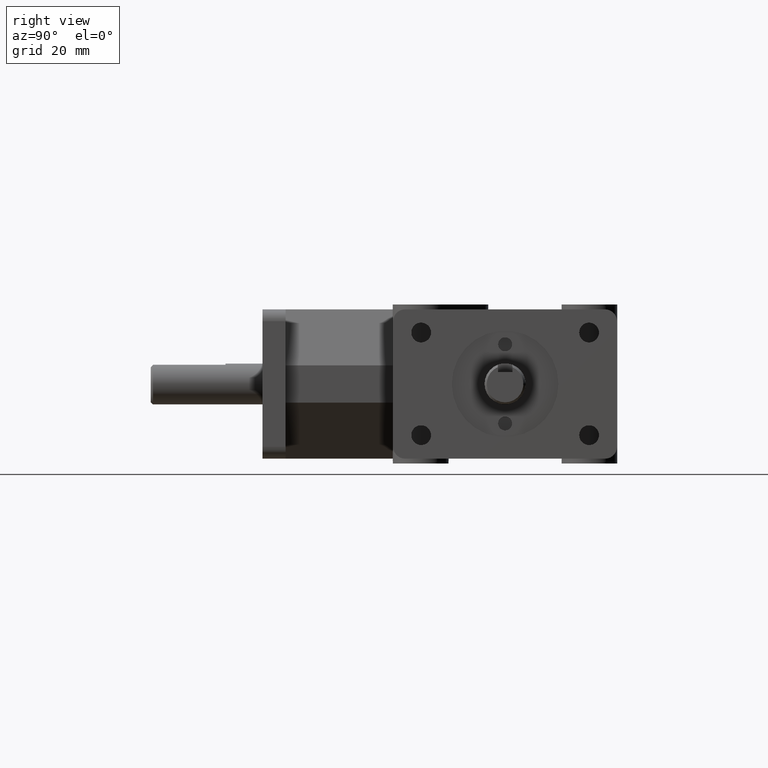
[diagram: clean part render]
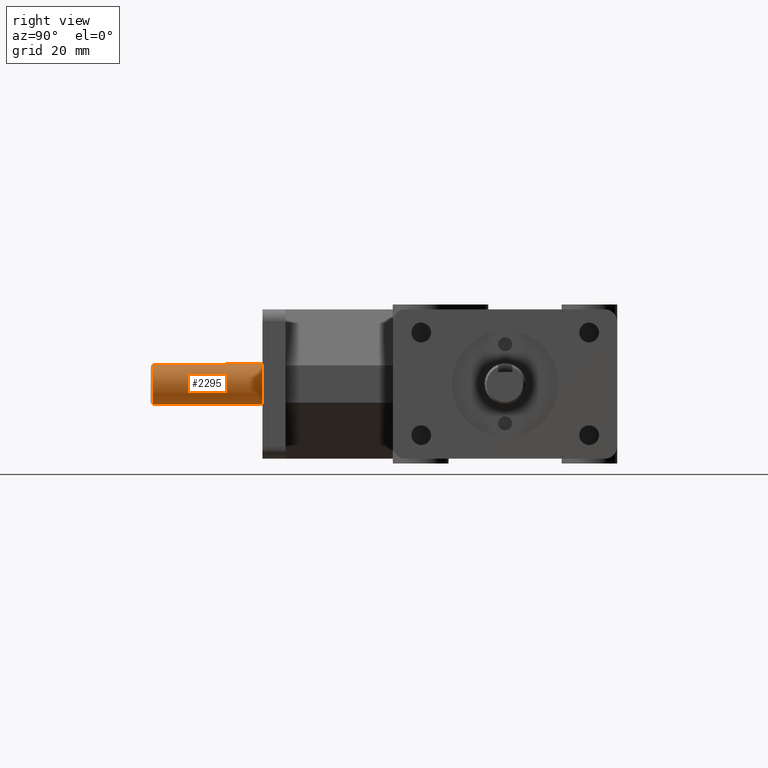
[diagram: same view with one face highlighted and labeled with its STEP entity id]
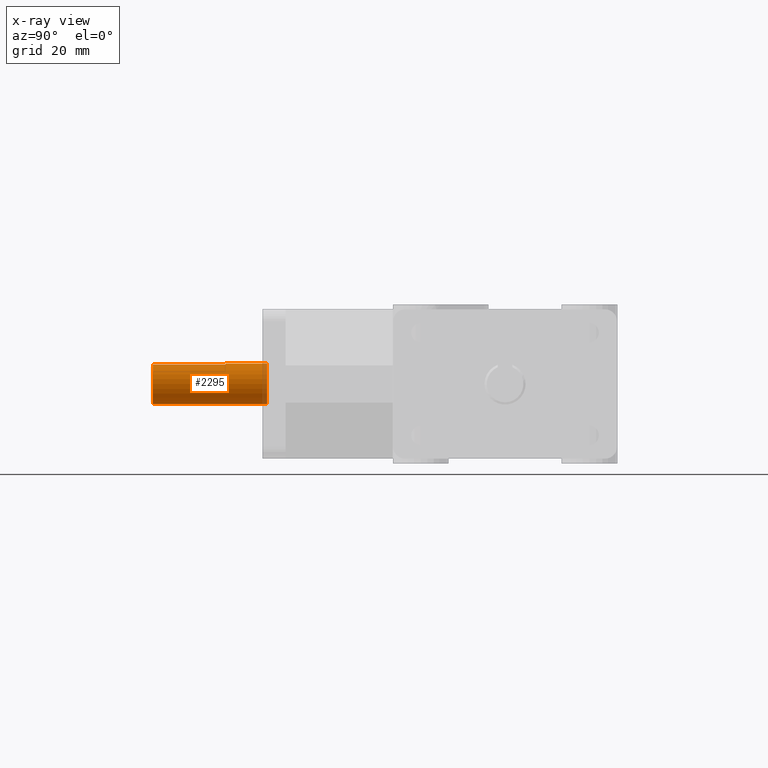
[diagram: x-ray of the same camera — body ghosted, the highlighted face saturated]
A machine part, right view. The second image highlights one B-rep face of the part: STEP entity #2295.
The next image is the same camera in x-ray: the body ghosted, the highlighted face saturated — about 4% of this face is hidden behind the body in this view.
In plain terms, the highlighted cylindrical surface (bore or boss wall) has radius 7 mm, axis along (0, -1, 0).
Its self-contained STEP definition (entity closure, byte-faithful):
#176=FACE_OUTER_BOUND('',#305,.T.);
#305=EDGE_LOOP('',(#1652,#1653,#1654,#1655,#1656,#1657,#1658,#1659));
#472=LINE('',#3446,#694);
#476=LINE('',#3459,#698);
#482=LINE('',#3478,#704);
#694=VECTOR('',#2761,1.);
#698=VECTOR('',#2767,1.);
#704=VECTOR('',#2783,7.);
#919=CIRCLE('',#2461,7.);
#920=CIRCLE('',#2463,7.);
#921=CIRCLE('',#2464,7.);
#922=CIRCLE('',#2465,7.);
#1032=VERTEX_POINT('',#3444);
#1033=VERTEX_POINT('',#3445);
#1037=VERTEX_POINT('',#3457);
#1038=VERTEX_POINT('',#3458);
#1042=VERTEX_POINT('',#3475);
#1043=VERTEX_POINT('',#3477);
#1268=EDGE_CURVE('',#1032,#1033,#472,.T.);
#1273=EDGE_CURVE('',#1037,#1038,#476,.T.);
#1280=EDGE_CURVE('',#1038,#1032,#919,.T.);
#1281=EDGE_CURVE('',#1042,#1033,#920,.T.);
#1282=EDGE_CURVE('',#1042,#1043,#482,.T.);
#1283=EDGE_CURVE('',#1043,#1043,#921,.T.);
#1284=EDGE_CURVE('',#1037,#1042,#922,.T.);
#1652=ORIENTED_EDGE('',*,*,#1268,.T.);
#1653=ORIENTED_EDGE('',*,*,#1281,.F.);
#1654=ORIENTED_EDGE('',*,*,#1282,.T.);
#1655=ORIENTED_EDGE('',*,*,#1283,.F.);
#1656=ORIENTED_EDGE('',*,*,#1282,.F.);
#1657=ORIENTED_EDGE('',*,*,#1284,.F.);
#1658=ORIENTED_EDGE('',*,*,#1273,.T.);
#1659=ORIENTED_EDGE('',*,*,#1280,.T.);
#2235=CYLINDRICAL_SURFACE('',#2462,7.);
#2295=ADVANCED_FACE('',(#176),#2235,.T.);
#2461=AXIS2_PLACEMENT_3D('',#3473,#2777,#2778);
#2462=AXIS2_PLACEMENT_3D('',#3474,#2779,#2780);
#2463=AXIS2_PLACEMENT_3D('',#3476,#2781,#2782);
#2464=AXIS2_PLACEMENT_3D('',#3479,#2784,#2785);
#2465=AXIS2_PLACEMENT_3D('',#3480,#2786,#2787);
#2761=DIRECTION('',(0.,-1.,0.));
#2767=DIRECTION('',(0.,1.,0.));
#2777=DIRECTION('center_axis',(0.,1.,0.));
#2778=DIRECTION('ref_axis',(1.,0.,0.));
#2779=DIRECTION('center_axis',(0.,-1.,0.));
#2780=DIRECTION('ref_axis',(1.,0.,0.));
#2781=DIRECTION('center_axis',(0.,-1.,0.));
#2782=DIRECTION('ref_axis',(-1.,0.,0.));
#2783=DIRECTION('',(0.,1.,0.));
#2784=DIRECTION('center_axis',(0.,1.,0.));
#2785=DIRECTION('ref_axis',(1.,0.,0.));
#2786=DIRECTION('center_axis',(0.,-1.,0.));
#2787=DIRECTION('ref_axis',(-1.,0.,0.));
#3444=CARTESIAN_POINT('',(2.5,-12.6,6.53834841531101));
#3445=CARTESIAN_POINT('',(2.5,-37.238,6.53834841531101));
#3446=CARTESIAN_POINT('',(2.5,-18.238,6.53834841531101));
#3457=CARTESIAN_POINT('',(-2.5,-37.238,6.53834841531101));
#3458=CARTESIAN_POINT('',(-2.5,-12.6,6.53834841531101));
#3459=CARTESIAN_POINT('',(-2.5,-18.238,6.53834841531101));
#3473=CARTESIAN_POINT('Origin',(0.,-12.6,0.));
#3474=CARTESIAN_POINT('Origin',(0.,-18.238,0.));
#3475=CARTESIAN_POINT('',(-7.,-37.238,-8.57252759403147E-16));
#3476=CARTESIAN_POINT('Origin',(0.,-37.238,0.));
#3477=CARTESIAN_POINT('',(-7.,1.524,-8.57252759403147E-16));
#3478=CARTESIAN_POINT('',(-7.,-18.238,-8.57252759403147E-16));
#3479=CARTESIAN_POINT('Origin',(0.,1.524,0.));
#3480=CARTESIAN_POINT('Origin',(0.,-37.238,0.));